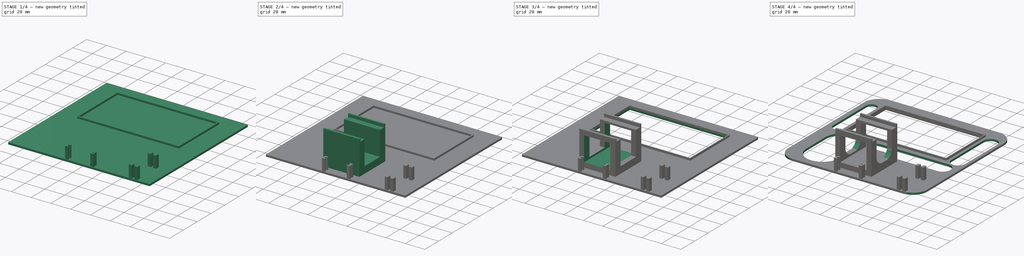
[diagram: build sequence overview — one tinted view per stage of 4, left to right]
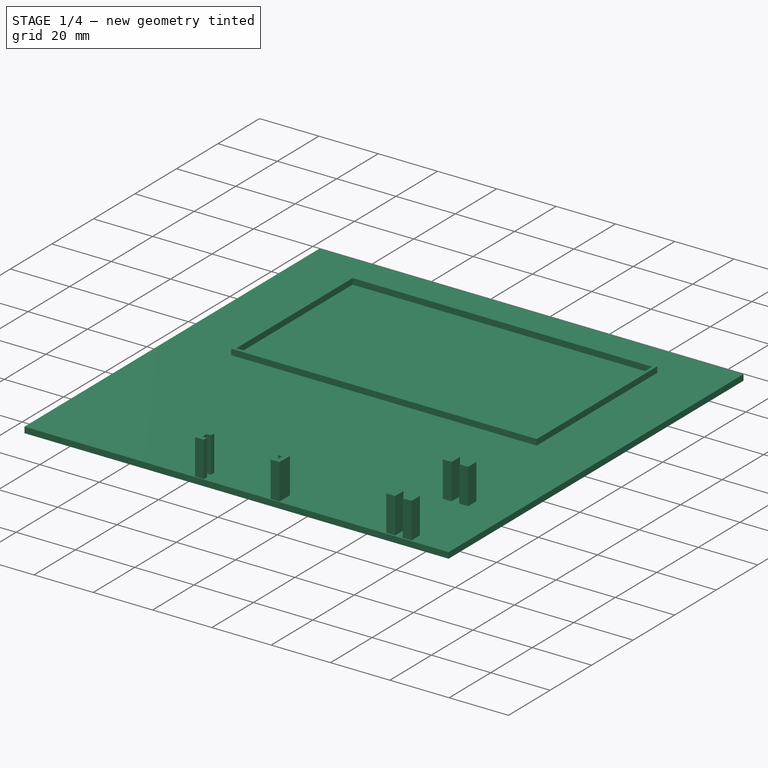
[diagram: stage 1 of 4 — iso view after this stage's code; geometry added in this stage tinted green]
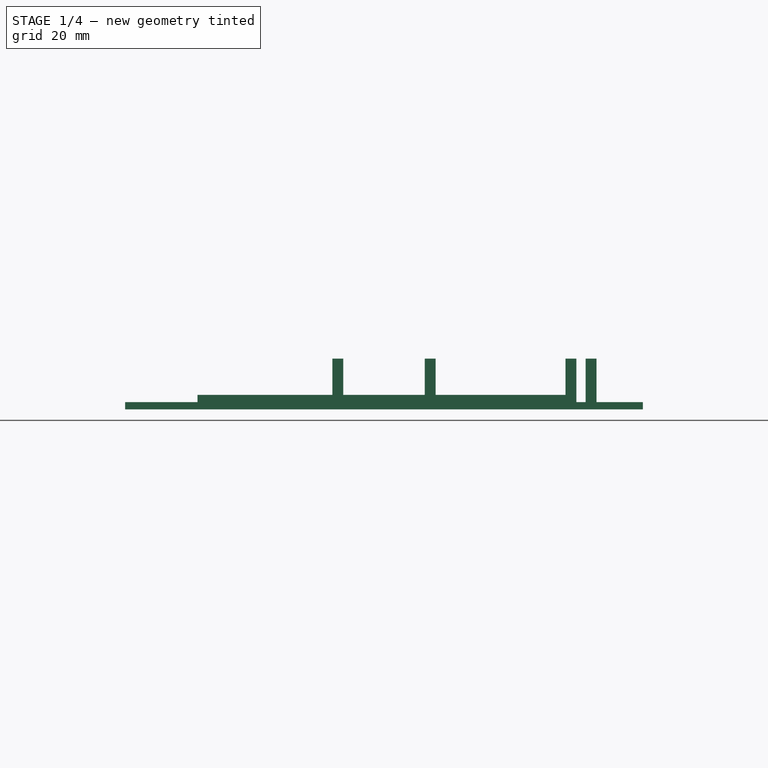
[diagram: stage 1 of 4 — front view after this stage's code; geometry added in this stage tinted green]
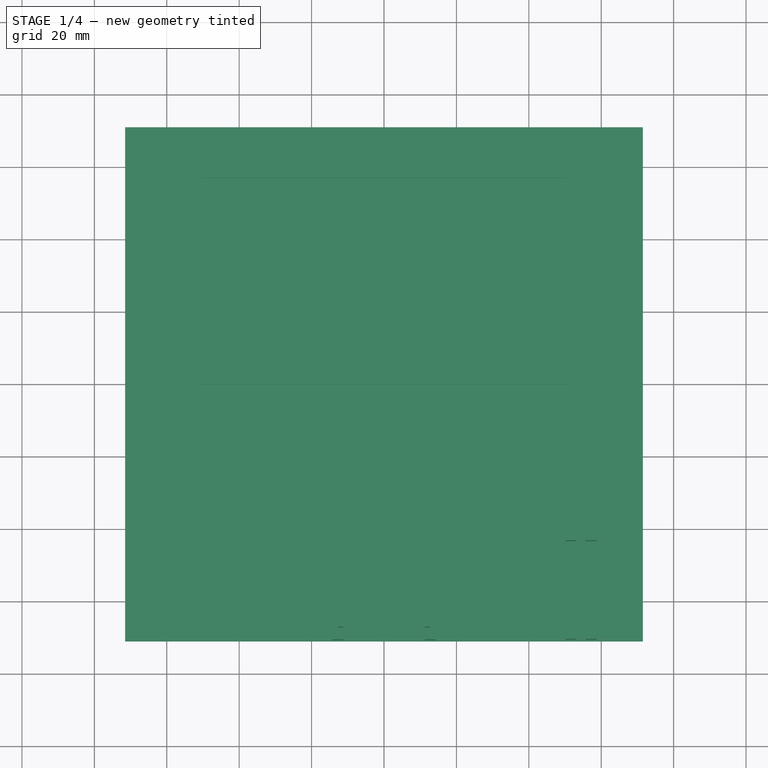
[diagram: stage 1 of 4 — top view after this stage's code; geometry added in this stage tinted green]
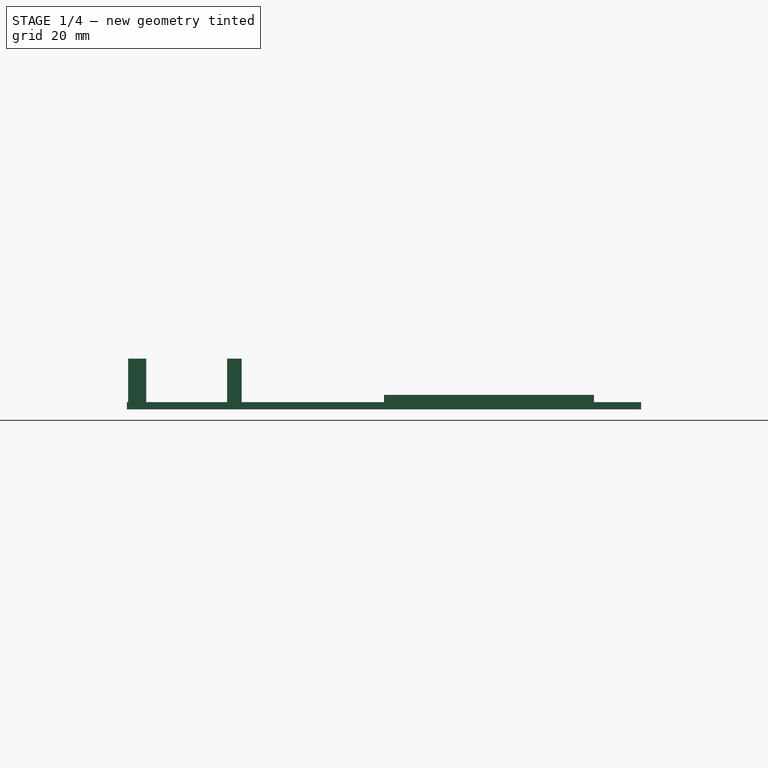
[diagram: stage 1 of 4 — right view after this stage's code; geometry added in this stage tinted green]
FCSTD DOCUMENT  (FreeCAD 0.20R29410 (Git))
Label: SpookyBox2023-2
License: All rights reserved
LicenseURL: http://en.wikipedia.org/wiki/All_rights_reserved
objects: Sketcher::SketchObject×9, PartDesign::Pocket×5, PartDesign::Pad×4, PartDesign::Fillet×2, PartDesign::Body×1
note: 32 computed .brp shape members not serialized (recipe doc carries the construction recipe); baked Part::Feature solids carry a one-line shape summary decoded from their .brp

FEATURE [Sketcher::SketchObject] Sketch
  FullyConstrained = true
  MapMode = 5
  Support = -> [XY_Plane]
  sketch-geometry (4):
    g0: LineSegment StartX=-71.5 StartY=71 StartZ=0 EndX=71.5 EndY=71 EndZ=0
    g1: LineSegment StartX=71.5 StartY=71 StartZ=0 EndX=71.5 EndY=-71 EndZ=0
    g2: LineSegment StartX=71.5 StartY=-71 StartZ=0 EndX=-71.5 EndY=-71 EndZ=0
    g3: LineSegment StartX=-71.5 StartY=-71 StartZ=0 EndX=-71.5 EndY=71 EndZ=0
  constraints (10):
    c: Coincident(g0,g1)
    c: Coincident(g1,g2)
    c: Coincident(g2,g3)
    c: Coincident(g3,g0)
    c: Horizontal(g0)
    c: Vertical(g3)
    c: DistanceX(g2,g1) = 143
    c: Symmetric(g2,g1,g-2)
    c: Symmetric(g0,g1,g-1)
    c: DistanceY(g1,g0) = 142
FEATURE [PartDesign::Pad] Pad  label="Pad - Body Height"
  Direction = (0,0,1)
  Length = 2
  Length2 = 100
  Profile = -> Sketch
  Type = 0
FEATURE [Sketcher::SketchObject] Sketch007  label="Sketch - Camera and Lid Servo Supports"
  FullyConstrained = false
  MapMode = 5
  Placement = pos=(0,0,2) rot=(0,0,1;0rad)
  Support = -> [Pad]
  sketch-geometry (33):
    g0: LineSegment StartX=55.6883 StartY=-39.3182 StartZ=0 EndX=58.6883 EndY=-39.3182 EndZ=0
    g1: LineSegment StartX=58.6883 StartY=-39.3182 StartZ=0 EndX=58.6883 EndY=-43.3182 EndZ=0
    g2: LineSegment StartX=58.6883 StartY=-43.3182 StartZ=0 EndX=55.6883 EndY=-43.3182 EndZ=0
    g3: LineSegment StartX=55.6883 StartY=-43.3182 StartZ=0 EndX=55.6883 EndY=-39.3182 EndZ=0
    g4: LineSegment StartX=50.1383 StartY=-39.3182 StartZ=0 EndX=53.1383 EndY=-39.3182 EndZ=0
    g5: LineSegment StartX=53.1383 StartY=-39.3182 StartZ=0 EndX=53.1383 EndY=-43.3182 EndZ=0
    g6: LineSegment StartX=53.1383 StartY=-43.3182 StartZ=0 EndX=50.1383 EndY=-43.3182 EndZ=0
    g7: LineSegment StartX=50.1383 StartY=-43.3182 StartZ=0 EndX=50.1383 EndY=-39.3182 EndZ=0
    g8: LineSegment StartX=55.6883 StartY=-66.5182 StartZ=0 EndX=58.6883 EndY=-66.5182 EndZ=0
    g9: LineSegment StartX=58.6883 StartY=-66.5182 StartZ=0 EndX=58.6883 EndY=-70.5182 EndZ=0
    g10: LineSegment StartX=58.6883 StartY=-70.5182 StartZ=0 EndX=55.6883 EndY=-70.5182 EndZ=0
    g11: LineSegment StartX=55.6883 StartY=-70.5182 StartZ=0 EndX=55.6883 EndY=-66.5182 EndZ=0
    g12: LineSegment StartX=50.1383 StartY=-66.5182 StartZ=0 EndX=53.1383 EndY=-66.5182 EndZ=0
    g13: LineSegment StartX=53.1383 StartY=-66.5182 StartZ=0 EndX=53.1383 EndY=-70.5182 EndZ=0
    g14: LineSegment StartX=53.1383 StartY=-70.5182 StartZ=0 EndX=50.1383 EndY=-70.5182 EndZ=0
    g15: LineSegment StartX=50.1383 StartY=-70.5182 StartZ=0 EndX=50.1383 EndY=-66.5182 EndZ=0
    g16: LineSegment StartX=11.25 StartY=-65.6743 StartZ=0 EndX=14.25 EndY=-65.6743 EndZ=0
    g17: LineSegment StartX=14.25 StartY=-65.6743 StartZ=0 EndX=14.25 EndY=-70.6743 EndZ=0
    g18: LineSegment StartX=14.25 StartY=-70.6743 StartZ=0 EndX=11.25 EndY=-70.6743 EndZ=0
    g19: LineSegment StartX=11.25 StartY=-70.6743 StartZ=0 EndX=11.25 EndY=-69.1743 EndZ=0
    g20: LineSegment StartX=11.25 StartY=-69.1743 StartZ=0 EndX=12.75 EndY=-69.1743 EndZ=0
    g21: LineSegment StartX=12.75 StartY=-69.1743 StartZ=0 EndX=12.75 EndY=-67.1743 EndZ=0
    g22: LineSegment StartX=12.75 StartY=-67.1743 StartZ=0 EndX=11.25 EndY=-67.1743 EndZ=0
    g23: LineSegment StartX=11.25 StartY=-67.1743 StartZ=0 EndX=11.25 EndY=-65.6743 EndZ=0
    g24: LineSegment StartX=-14.25 StartY=-65.6743 StartZ=0 EndX=-11.25 EndY=-65.6743 EndZ=0
    g25: LineSegment StartX=-11.25 StartY=-65.6743 StartZ=0 EndX=-11.25 EndY=-67.1743 EndZ=0
    g26: LineSegment StartX=-11.25 StartY=-67.1743 StartZ=0 EndX=-12.75 EndY=-67.1743 EndZ=0
    g27: LineSegment StartX=-12.75 StartY=-67.1743 StartZ=0 EndX=-12.75 EndY=-69.1743 EndZ=0
    g28: LineSegment StartX=-12.75 StartY=-69.1743 StartZ=0 EndX=-11.25 EndY=-69.1743 EndZ=0
    g29: LineSegment StartX=-11.25 StartY=-69.1743 StartZ=0 EndX=-11.25 EndY=-70.6743 EndZ=0
    g30: LineSegment StartX=-11.25 StartY=-70.6743 StartZ=0 EndX=-14.25 EndY=-70.6743 EndZ=0
    g31: LineSegment StartX=-14.25 StartY=-70.6743 StartZ=0 EndX=-14.25 EndY=-65.6743 EndZ=0
    g32: GeomPoint X=36.8383 Y=-45.6524 Z=0
  constraints (93):
    c: Coincident(g0,g1)
    c: Coincident(g1,g2)
    c: Coincident(g2,g3)
    c: Coincident(g3,g0)
    c: Horizontal(g0)
    c: Horizontal(g2)
    c: Vertical(g1)
    c: Vertical(g3)
    c: Coincident(g4,g5)
    c: Coincident(g5,g6)
    c: Coincident(g6,g7)
    c: Coincident(g7,g4)
    c: Horizontal(g4)
    c: Horizontal(g6)
    c: Vertical(g5)
    c: Vertical(g7)
    c: Equal(g0,g4)
    c: Equal(g5,g3)
    c: DistanceX(g4,g0) = 2.55
    c: DistanceY(g1,g0) = 4
    c: Horizontal(g4,g0)
    c: DistanceX(g4,g4) = 3
    c: Coincident(g8,g9)
    c: Coincident(g9,g10)
    c: Coincident(g10,g11)
    c: Coincident(g11,g8)
    c: Horizontal(g8)
    c: Horizontal(g10)
    c: Vertical(g9)
    c: Vertical(g11)
    c: Coincident(g12,g13)
    c: Coincident(g13,g14)
    c: Coincident(g14,g15)
    c: Coincident(g15,g12)
    c: Horizontal(g12)
    c: Horizontal(g14)
    c: Vertical(g13)
    c: Vertical(g15)
    c: Vertical(g8,g2)
    c: Vertical(g5,g12)
    c: Equal(g6,g12)
    c: Equal(g2,g8)
    c: Equal(g9,g1)
    c: Equal(g15,g7)
    c: Horizontal(g12,g8)
    c: DistanceY(g12,g5) = 23.2
    c: Horizontal(g16)
    c: Coincident(g16,g17)
    c: Vertical(g17)
    c: Coincident(g17,g18)
    c: Coincident(g18,g19)
    c: Vertical(g19)
    c: Coincident(g19,g20)
    c: Horizontal(g20)
    c: Coincident(g20,g21)
    c: Vertical(g21)
    c: Coincident(g21,g22)
    c: Horizontal(g22)
    c: Coincident(g22,g23)
    c: Coincident(g23,g16)
    c: Vertical(g23)
    c: Horizontal(g18)
    c: DistanceY(g21,g21) = 2
    c: DistanceY(g17,g17) = 5
    c: DistanceX(g20,g20) = 1.5
    c: Equal(g22,g20)
    c: Horizontal(g24)
    c: Coincident(g24,g25)
    c: Vertical(g25)
    c: Coincident(g25,g26)
    c: Horizontal(g26)
    c: Coincident(g26,g27)
    c: Vertical(g27)
    c: Coincident(g27,g28)
    c: Horizontal(g28)
    c: Coincident(g28,g29)
    c: Vertical(g29)
    c: Coincident(g29,g30)
    c: Horizontal(g30)
    c: Coincident(g30,g31)
    c: Coincident(g31,g24)
    c: Vertical(g31)
    c: Equal(g24,g16)
    c: Equal(g26,g22)
    c: Equal(g27,g21)
    c: Equal(g31,g17)
    c: DistanceX(g18,g18) = 3
    c: Equal(g23,g19)
    c: Equal(g25,g23)
    c: Symmetric(g29,g18,g-2)
    c: Equal(g24,g30)
    c: DistanceX(g26,g21) = 25.5
    c: DistanceX(g32,g5) = 16.3
FEATURE [PartDesign::Pad] Pad005  label="Pad - Camera and Lid Servo Supports"
  BaseFeature = -> Pad
  Direction = (0,0,1)
  Length = 12
  Length2 = 100
  Profile = -> Sketch007
  Type = 0
FEATURE [Sketcher::SketchObject] Sketch008
  ExternalGeometry = -> [Pad005]
  FullyConstrained = true
  MapMode = 5
  Placement = pos=(0,0,2) rot=(0,0,1;0rad)
  Support = -> [Pad005]
  sketch-geometry (8):
    g0: LineSegment StartX=-51.5 StartY=58 StartZ=0 EndX=51.5 EndY=58 EndZ=0
    g1: LineSegment StartX=51.5 StartY=58 StartZ=0 EndX=51.5 EndY=0 EndZ=0
    g2: LineSegment StartX=51.5 StartY=0 StartZ=0 EndX=-51.5 EndY=0 EndZ=0
    g3: LineSegment StartX=-51.5 StartY=0 StartZ=0 EndX=-51.5 EndY=58 EndZ=0
    g4: LineSegment StartX=-50.5 StartY=57 StartZ=0 EndX=50.5 EndY=57 EndZ=0
    g5: LineSegment StartX=50.5 StartY=57 StartZ=0 EndX=50.5 EndY=1 EndZ=0
    g6: LineSegment StartX=50.5 StartY=1 StartZ=0 EndX=-50.5 EndY=1 EndZ=0
    g7: LineSegment StartX=-50.5 StartY=1 StartZ=0 EndX=-50.5 EndY=57 EndZ=0
  constraints (23):
    c: Coincident(g0,g1)
    c: Coincident(g1,g2)
    c: Coincident(g2,g3)
    c: Coincident(g3,g0)
    c: Horizontal(g0)
    c: Horizontal(g2)
    c: Vertical(g1)
    c: Vertical(g3)
    c: Symmetric(g2,g1,g-1)
    c: DistanceY(g1,g1) = 58
    c: DistanceX(g0,g0) = 103
    c: Coincident(g4,g5)
    c: Coincident(g5,g6)
    c: Coincident(g6,g7)
    c: Coincident(g7,g4)
    c: Horizontal(g4)
    c: Horizontal(g6)
    c: Vertical(g5)
    c: Vertical(g7)
    c: DistanceX(g4,g0) = 1
    c: DistanceY(g4,g0) = 1
    c: DistanceY(g2,g6) = 1
    c: DistanceX(g2,g6) = 1
FEATURE [PartDesign::Pad] Pad006
  BaseFeature = -> Pad005
  Direction = (0,0,1)
  Length = 2
  Length2 = 10
  Profile = -> Sketch008
  ReferenceAxis = -> Sketch008 [N_Axis]
  Type = 0
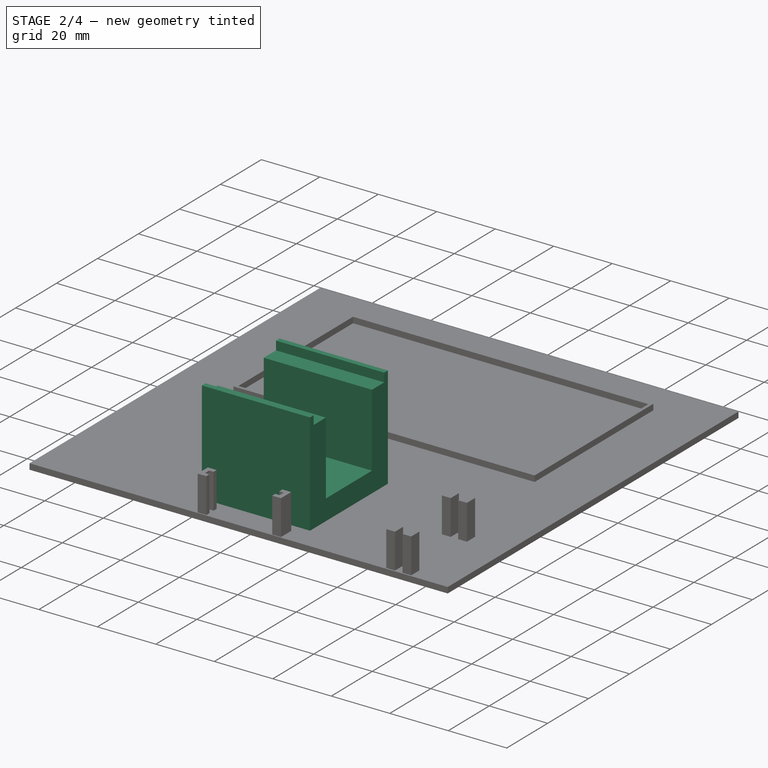
[diagram: stage 2 of 4 — iso view after this stage's code; geometry added in this stage tinted green]
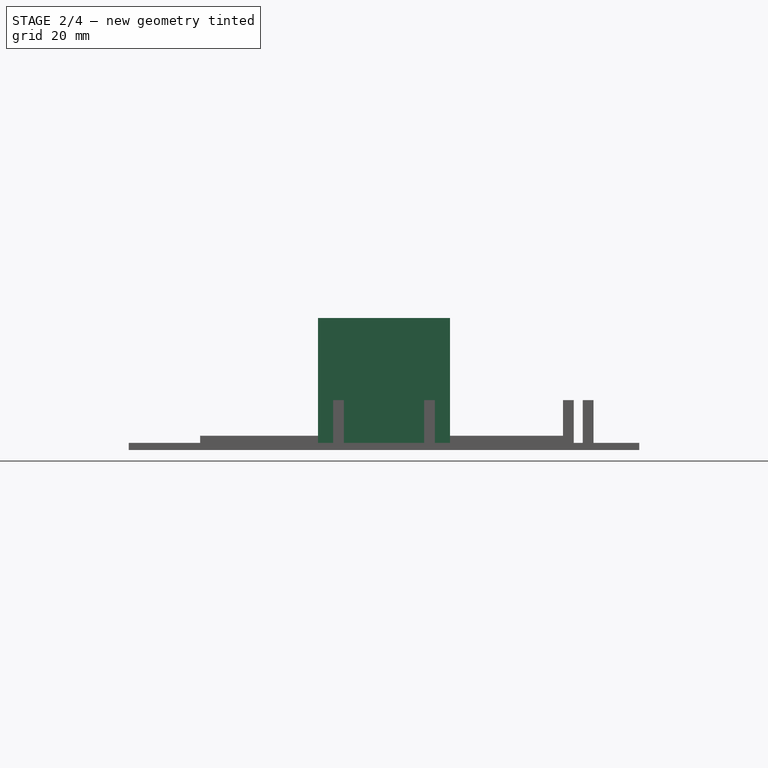
[diagram: stage 2 of 4 — front view after this stage's code; geometry added in this stage tinted green]
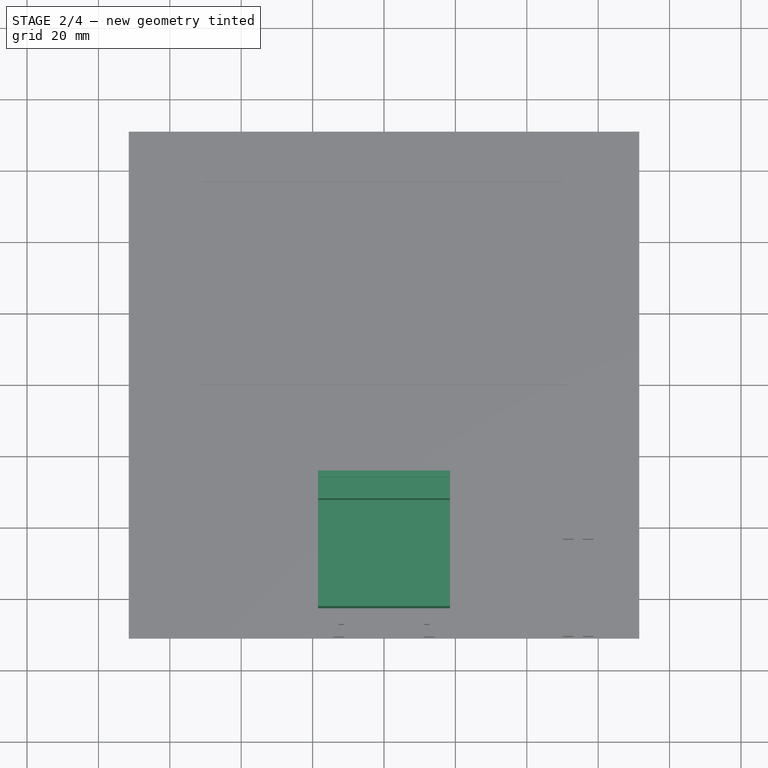
[diagram: stage 2 of 4 — top view after this stage's code; geometry added in this stage tinted green]
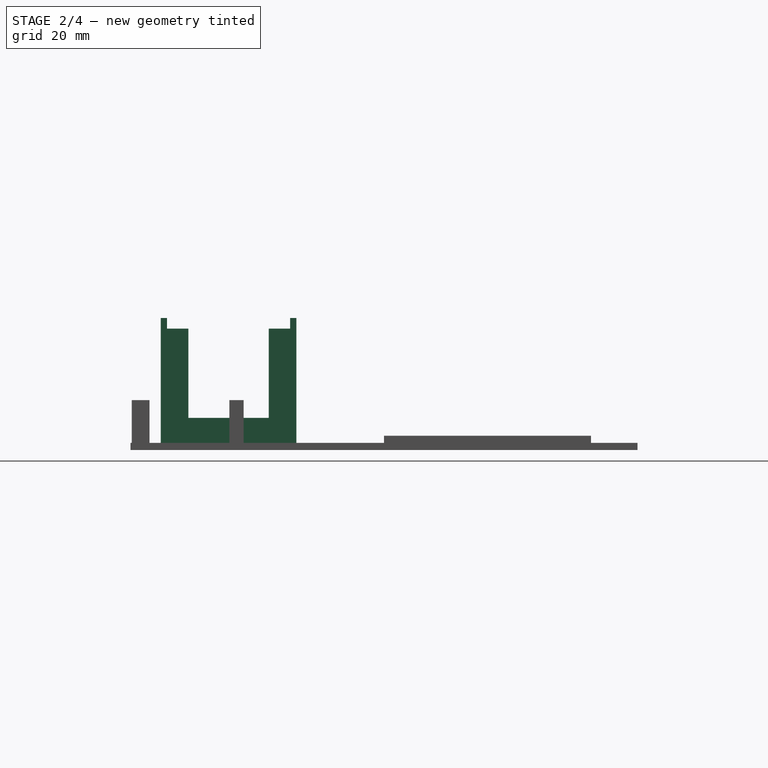
[diagram: stage 2 of 4 — right view after this stage's code; geometry added in this stage tinted green]
FEATURE [Sketcher::SketchObject] Sketch009
  FullyConstrained = false
  MapMode = 5
  Placement = pos=(0,0,2) rot=(0,0,1;0rad)
  Support = -> [Pad006]
  sketch-geometry (4):
    g0: LineSegment StartX=-18.5 StartY=-62.5518 StartZ=0 EndX=18.5 EndY=-62.5518 EndZ=0
    g1: LineSegment StartX=18.5 StartY=-62.5518 StartZ=0 EndX=18.5 EndY=-24.5518 EndZ=0
    g2: LineSegment StartX=18.5 StartY=-24.5518 StartZ=0 EndX=-18.5 EndY=-24.5518 EndZ=0
    g3: LineSegment StartX=-18.5 StartY=-24.5518 StartZ=0 EndX=-18.5 EndY=-62.5518 EndZ=0
  constraints (10):
    c: Coincident(g0,g1)
    c: Coincident(g1,g2)
    c: Coincident(g2,g3)
    c: Coincident(g3,g0)
    c: Horizontal(g0)
    c: Vertical(g1)
    c: Vertical(g3)
    c: DistanceY(g1,g1) = 38
    c: DistanceX(g2,g2) = 37
    c: Symmetric(g1,g2,g-2)
FEATURE [PartDesign::Pad] Pad007
  BaseFeature = -> Pad006
  Direction = (0,0,1)
  Length = 35
  Length2 = 10
  Profile = -> Sketch009
  ReferenceAxis = -> Sketch009 [N_Axis]
  Type = 0
FEATURE [Sketcher::SketchObject] Sketch010
  ExternalGeometry = -> [Pad007]
  FullyConstrained = true
  MapMode = 5
  Placement = pos=(0,0,37) rot=(0,0,1;0rad)
  Support = -> [Pad007]
  sketch-geometry (4):
    g0: LineSegment StartX=-18.5 StartY=-26.3018 StartZ=0 EndX=18.5 EndY=-26.3018 EndZ=0
    g1: LineSegment StartX=18.5 StartY=-26.3018 StartZ=0 EndX=18.5 EndY=-60.8018 EndZ=0
    g2: LineSegment StartX=18.5 StartY=-60.8018 StartZ=0 EndX=-18.5 EndY=-60.8018 EndZ=0
    g3: LineSegment StartX=-18.5 StartY=-60.8018 StartZ=0 EndX=-18.5 EndY=-26.3018 EndZ=0
  constraints (12):
    c: Coincident(g0,g1)
    c: Coincident(g1,g2)
    c: Coincident(g2,g3)
    c: Coincident(g3,g0)
    c: Horizontal(g0)
    c: Horizontal(g2)
    c: Vertical(g1)
    c: Vertical(g3)
    c: PointOnObject(g0,g-6)
    c: PointOnObject(g1,g-4)
    c: DistanceY(g0,g-4) = 1.75
    c: DistanceY(g-5,g1) = 1.75
FEATURE [PartDesign::Pocket] Pocket
  BaseFeature = -> Pad007
  Direction = (0,0,-1)
  Length = 3
  Length2 = 5
  Profile = -> Sketch010
  ReferenceAxis = -> Sketch010 [N_Axis]
  Type = 0
FEATURE [Sketcher::SketchObject] Sketch011
  ExternalGeometry = -> [Pocket]
  FullyConstrained = true
  MapMode = 5
  Placement = pos=(0,0,34) rot=(0,0,1;0rad)
  Support = -> [Pocket]
  sketch-geometry (4):
    g0: LineSegment StartX=-18.5 StartY=-32.3018 StartZ=0 EndX=18.5 EndY=-32.3018 EndZ=0
    g1: LineSegment StartX=18.5 StartY=-32.3018 StartZ=0 EndX=18.5 EndY=-54.8018 EndZ=0
    g2: LineSegment StartX=18.5 StartY=-54.8018 StartZ=0 EndX=-18.5 EndY=-54.8018 EndZ=0
    g3: LineSegment StartX=-18.5 StartY=-54.8018 StartZ=0 EndX=-18.5 EndY=-32.3018 EndZ=0
  constraints (12):
    c: Coincident(g0,g1)
    c: Coincident(g1,g2)
    c: Coincident(g2,g3)
    c: Coincident(g3,g0)
    c: Horizontal(g0)
    c: Horizontal(g2)
    c: Vertical(g1)
    c: Vertical(g3)
    c: PointOnObject(g0,g-6)
    c: PointOnObject(g1,g-5)
    c: DistanceY(g0,g-5) = 6
    c: DistanceY(g-5,g1) = 6
FEATURE [PartDesign::Pocket] Pocket001
  BaseFeature = -> Pocket
  Direction = (0,0,-1)
  Length = 25
  Length2 = 5
  Profile = -> Sketch011
  ReferenceAxis = -> Sketch011 [N_Axis]
  Type = 0
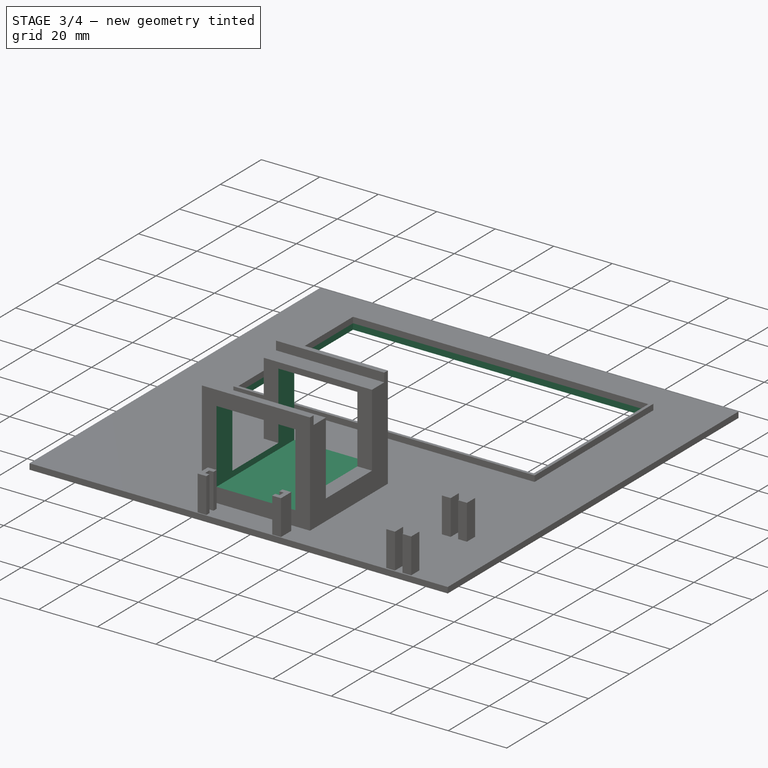
[diagram: stage 3 of 4 — iso view after this stage's code; geometry added in this stage tinted green]
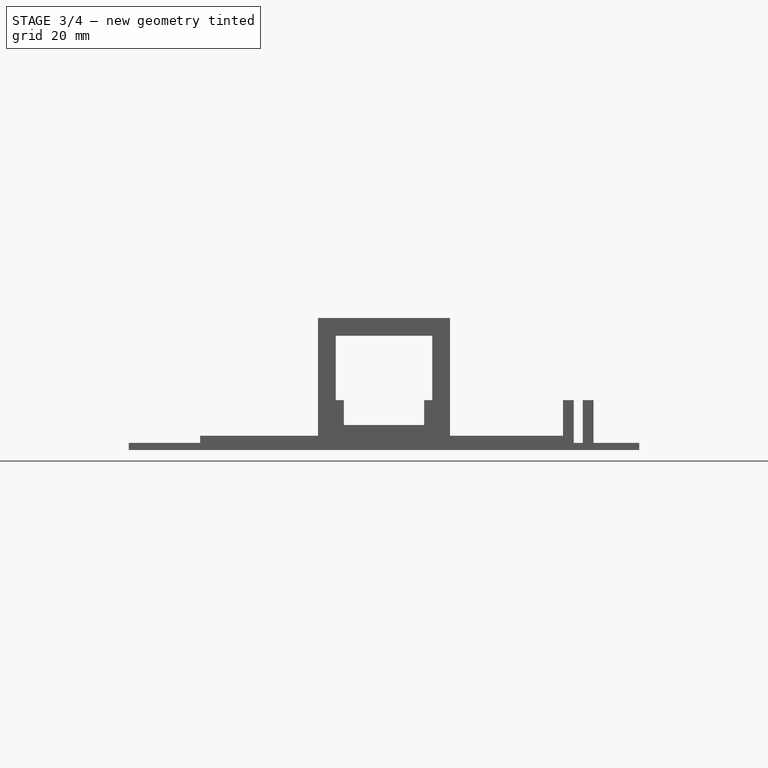
[diagram: stage 3 of 4 — front view after this stage's code; geometry added in this stage tinted green]
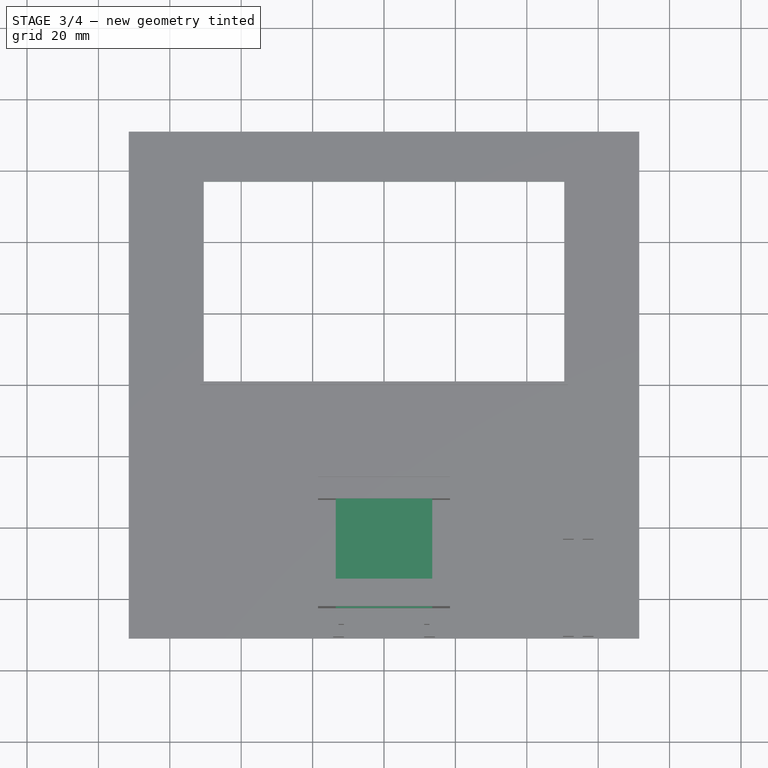
[diagram: stage 3 of 4 — top view after this stage's code; geometry added in this stage tinted green]
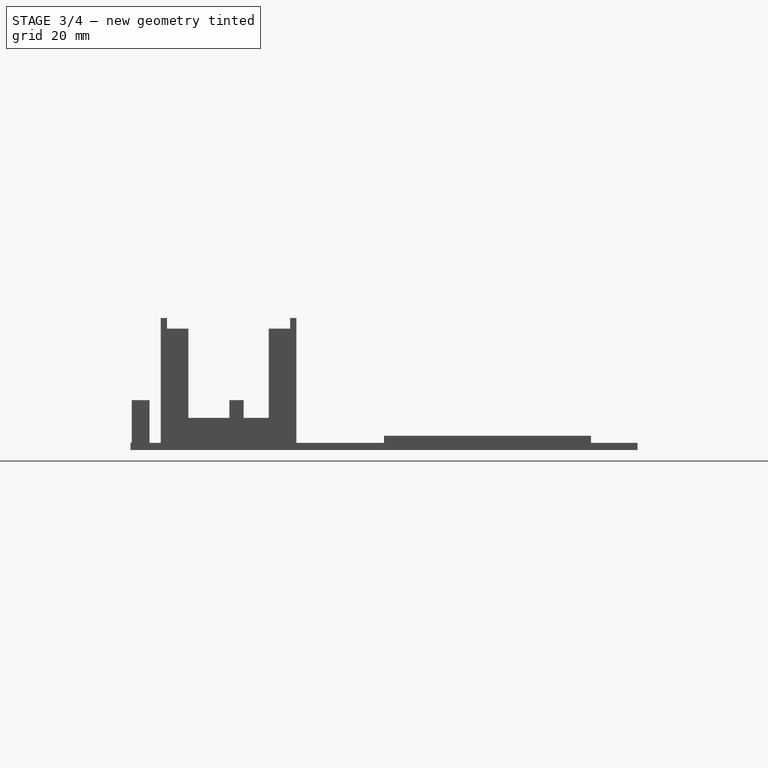
[diagram: stage 3 of 4 — right view after this stage's code; geometry added in this stage tinted green]
FEATURE [Sketcher::SketchObject] Sketch013
  ExternalGeometry = -> [Pocket001]
  FullyConstrained = true
  MapMode = 5
  Placement = pos=(0,-62.5518,0) rot=(1,0,0;1.5708rad)
  Support = -> [Pocket001]
  sketch-geometry (4):
    g0: LineSegment StartX=-13.5 StartY=32 StartZ=0 EndX=13.5 EndY=32 EndZ=0
    g1: LineSegment StartX=13.5 StartY=32 StartZ=0 EndX=13.5 EndY=7 EndZ=0
    g2: LineSegment StartX=13.5 StartY=7 StartZ=0 EndX=-13.5 EndY=7 EndZ=0
    g3: LineSegment StartX=-13.5 StartY=7 StartZ=0 EndX=-13.5 EndY=32 EndZ=0
  constraints (12):
    c: Coincident(g0,g1)
    c: Coincident(g1,g2)
    c: Coincident(g2,g3)
    c: Coincident(g3,g0)
    c: Horizontal(g0)
    c: Horizontal(g2)
    c: Vertical(g1)
    c: Vertical(g3)
    c: DistanceX(g0,g-4) = 5
    c: DistanceX(g-5,g0) = 5
    c: DistanceY(g0,g-4) = 5
    c: DistanceY(g-4,g1) = 5
FEATURE [PartDesign::Pocket] Pocket002
  BaseFeature = -> Pocket001
  Direction = (0,1,-2e-16)
  Length = 45
  Length2 = 5
  Profile = -> Sketch013
  ReferenceAxis = -> Sketch013 [N_Axis]
  Type = 0
FEATURE [Sketcher::SketchObject] Sketch014
  ExternalGeometry = -> [Pocket002]
  FullyConstrained = true
  MapMode = 5
  Placement = pos=(0,0,2) rot=(0,0,1;0rad)
  Support = -> [Pocket002]
  sketch-geometry (4):
    g0: LineSegment StartX=-50.5 StartY=1 StartZ=0 EndX=50.5 EndY=1 EndZ=0
    g1: LineSegment StartX=50.5 StartY=1 StartZ=0 EndX=50.5 EndY=57 EndZ=0
    g2: LineSegment StartX=50.5 StartY=57 StartZ=0 EndX=-50.5 EndY=57 EndZ=0
    g3: LineSegment StartX=-50.5 StartY=57 StartZ=0 EndX=-50.5 EndY=1 EndZ=0
  constraints (10):
    c: Coincident(g0,g1)
    c: Coincident(g1,g2)
    c: Coincident(g2,g3)
    c: Coincident(g3,g0)
    c: Horizontal(g0)
    c: Horizontal(g2)
    c: Vertical(g1)
    c: Vertical(g3)
    c: Coincident(g0,g-6)
    c: Coincident(g1,g-7)
FEATURE [PartDesign::Pocket] Pocket003
  BaseFeature = -> Pocket002
  Direction = (0,0,-1)
  Length = 5
  Length2 = 5
  Profile = -> Sketch014
  ReferenceAxis = -> Sketch014 [N_Axis]
  Type = 1
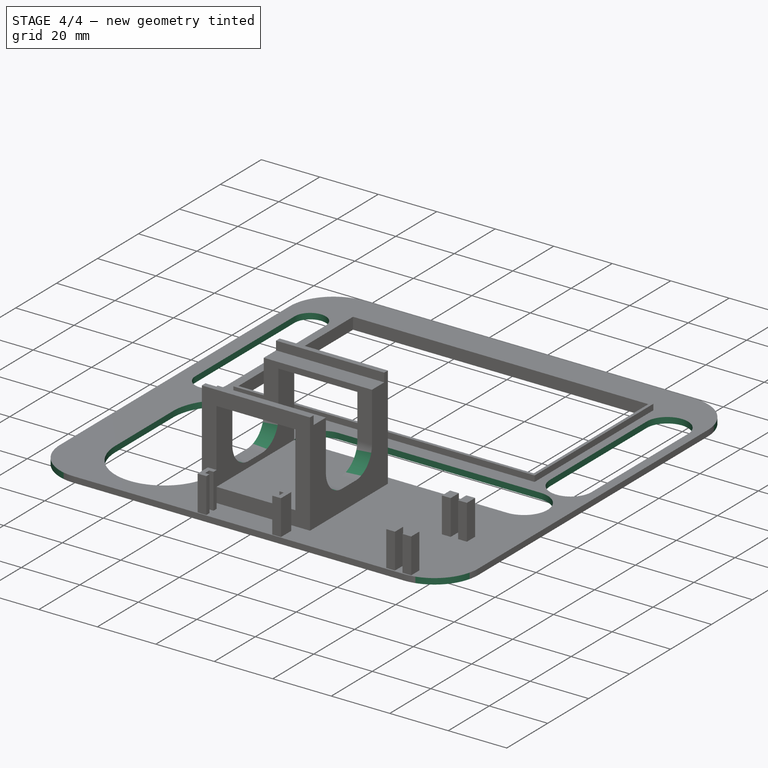
[diagram: stage 4 of 4 — iso view after this stage's code; geometry added in this stage tinted green]
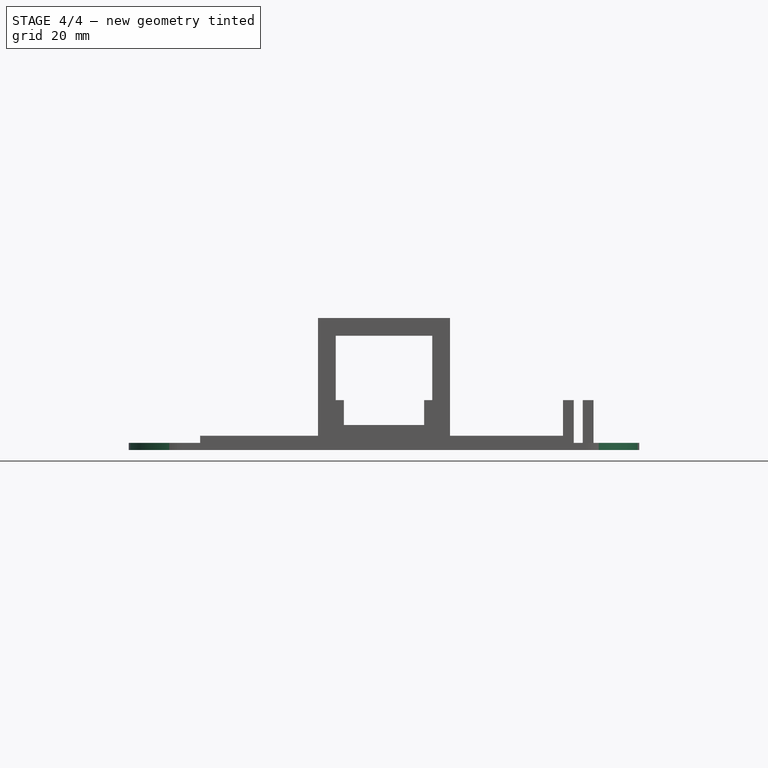
[diagram: stage 4 of 4 — front view after this stage's code; geometry added in this stage tinted green]
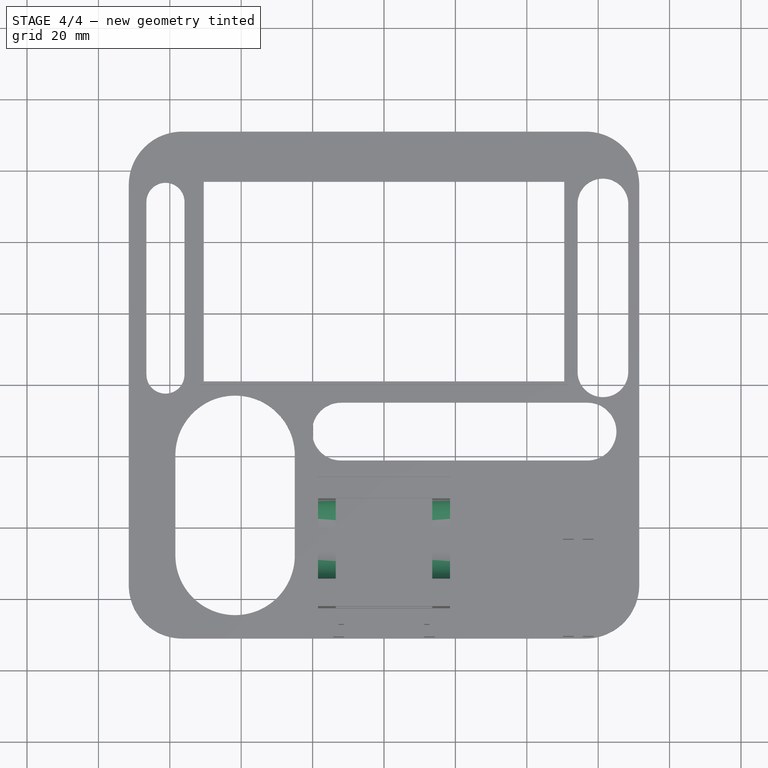
[diagram: stage 4 of 4 — top view after this stage's code; geometry added in this stage tinted green]
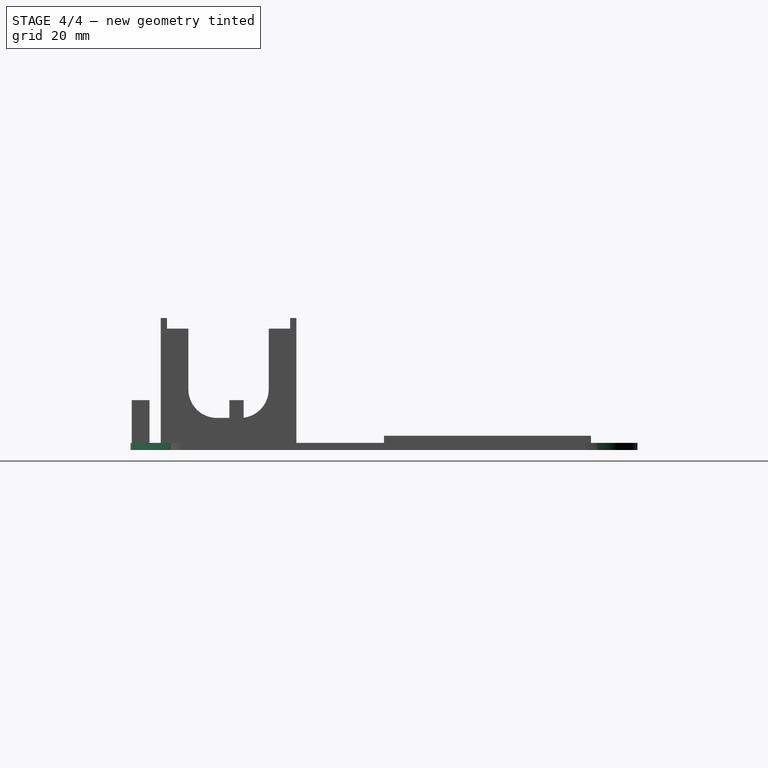
[diagram: stage 4 of 4 — right view after this stage's code; geometry added in this stage tinted green]
FEATURE [Sketcher::SketchObject] Sketch015
  FullyConstrained = false
  MapMode = 5
  Placement = pos=(0,0,2) rot=(0,0,1;0rad)
  Support = -> [Pocket003]
  sketch-geometry (16):
    g0: ArcOfCircle CenterX=-41.714 CenterY=-19.6557 CenterZ=0 NormalX=0 NormalY=0 NormalZ=1 AngleXU=0 Radius=16.7272 StartAngle=0 EndAngle=3.14159
    g1: ArcOfCircle CenterX=-41.714 CenterY=-47.7349 CenterZ=0 NormalX=0 NormalY=0 NormalZ=1 AngleXU=0 Radius=16.7272 StartAngle=3.14159 EndAngle=6.28319
    g2: LineSegment StartX=-58.4412 StartY=-19.6557 StartZ=0 EndX=-58.4412 EndY=-47.7349 EndZ=0
    g3: LineSegment StartX=-24.9868 StartY=-47.7349 StartZ=0 EndX=-24.9868 EndY=-19.6557 EndZ=0
    g4: ArcOfCircle CenterX=-12.0383 CenterY=-13.0278 CenterZ=0 NormalX=0 NormalY=0 NormalZ=1 AngleXU=0 Radius=8.11719 StartAngle=1.5708 EndAngle=4.71239
    g5: ArcOfCircle CenterX=56.9844 CenterY=-13.0278 CenterZ=0 NormalX=0 NormalY=0 NormalZ=1 AngleXU=0 Radius=8.11719 StartAngle=4.71239 EndAngle=7.85398
    g6: LineSegment StartX=-12.0383 StartY=-21.145 StartZ=0 EndX=56.9844 EndY=-21.145 EndZ=0
    g7: LineSegment StartX=56.9844 StartY=-4.91059 StartZ=0 EndX=-12.0383 EndY=-4.91059 EndZ=0
    g8: ArcOfCircle CenterX=-61.2213 CenterY=51.3657 CenterZ=0 NormalX=0 NormalY=0 NormalZ=1 AngleXU=0 Radius=5.32837 StartAngle=0 EndAngle=3.14159
    g9: ArcOfCircle CenterX=-61.2213 CenterY=2.9208 CenterZ=0 NormalX=0 NormalY=0 NormalZ=1 AngleXU=0 Radius=5.32837 StartAngle=3.14159 EndAngle=6.28319
    g10: LineSegment StartX=-66.5497 StartY=51.3657 StartZ=0 EndX=-66.5497 EndY=2.9208 EndZ=0
    g11: LineSegment StartX=-55.893 StartY=2.9208 StartZ=0 EndX=-55.893 EndY=51.3657 EndZ=0
    g12: ArcOfCircle CenterX=61.3218 CenterY=50.7738 CenterZ=0 NormalX=0 NormalY=0 NormalZ=1 AngleXU=0 Radius=7.09833 StartAngle=0 EndAngle=3.14159
    g13: ArcOfCircle CenterX=61.3218 CenterY=3.71012 CenterZ=0 NormalX=0 NormalY=0 NormalZ=1 AngleXU=0 Radius=7.09833 StartAngle=3.14159 EndAngle=6.28319
    g14: LineSegment StartX=54.2235 StartY=50.7738 StartZ=0 EndX=54.2235 EndY=3.71012 EndZ=0
    g15: LineSegment StartX=68.4202 StartY=3.71012 StartZ=0 EndX=68.4202 EndY=50.7738 EndZ=0
  constraints (24):
    c: Tangent(g0,g2) = -1.5708
    c: Tangent(g2,g1) = -1.5708
    c: Tangent(g1,g3) = -1.5708
    c: Tangent(g3,g0) = -1.5708
    c: Equal(g0,g1)
    c: Vertical(g2)
    c: Tangent(g4,g6) = -1.5708
    c: Tangent(g6,g5) = -1.5708
    c: Tangent(g5,g7) = -1.5708
    c: Tangent(g7,g4) = -1.5708
    c: Equal(g4,g5)
    c: Horizontal(g6)
    c: Tangent(g8,g10) = -1.5708
    c: Tangent(g10,g9) = -1.5708
    c: Tangent(g9,g11) = -1.5708
    c: Tangent(g11,g8) = -1.5708
    c: Equal(g8,g9)
    c: Vertical(g10)
    c: Tangent(g12,g14) = -1.5708
    c: Tangent(g14,g13) = -1.5708
    c: Tangent(g13,g15) = -1.5708
    c: Tangent(g15,g12) = -1.5708
    c: Equal(g12,g13)
    c: Vertical(g14)
FEATURE [PartDesign::Pocket] Pocket004
  BaseFeature = -> Pocket003
  Direction = (0,0,-1)
  Length = 5
  Length2 = 5
  Profile = -> Sketch015
  ReferenceAxis = -> Sketch015 [N_Axis]
  Type = 1
FEATURE [PartDesign::Fillet] Fillet
  Base = -> Pocket004 [Edge245,Edge243,Edge241,Edge242]
  BaseFeature = -> Pocket004
  Radius = 8
  SupportTransform = false
  UseAllEdges = false
FEATURE [PartDesign::Fillet] Fillet001
  Base = -> Fillet [Edge132,Edge134,Edge130,Edge129]
  BaseFeature = -> Fillet
  Radius = 15
  SupportTransform = false
  UseAllEdges = false
FEATURE [PartDesign::Body] Body  label="Base"
  Group = -> [Sketch,Pad,Sketch007,Pad005,Sketch008,Pad006,Sketch009,Pad007,Sketch010,Pocket,Sketch011,Pocket001,Sketch013,Pocket002,Sketch014,Pocket003,Sketch015,Pocket004,Fillet,Fillet001]
  Origin = -> Origin
  Tip = -> Fillet001
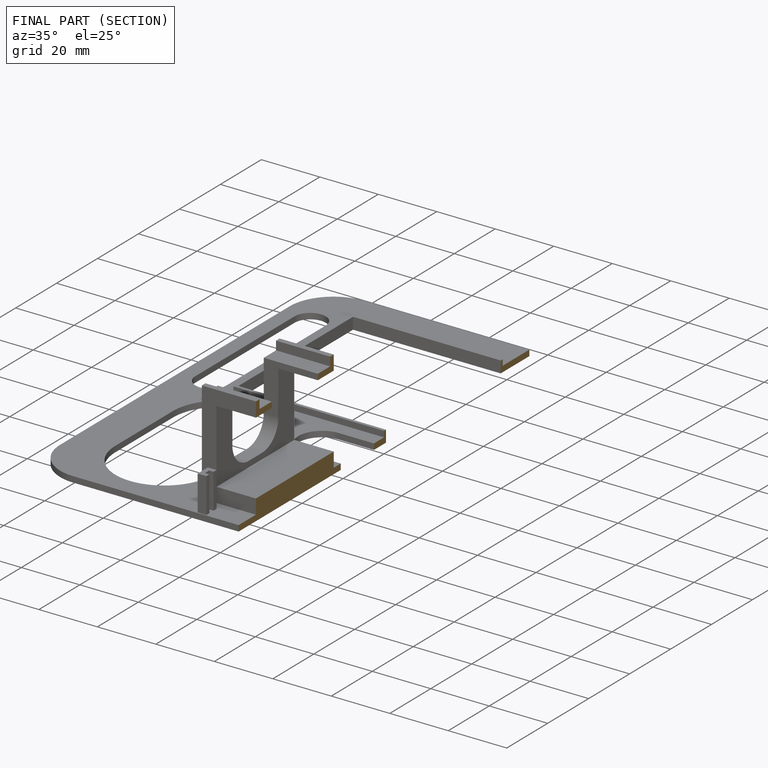
[diagram: finished part — half-section view (interior)]
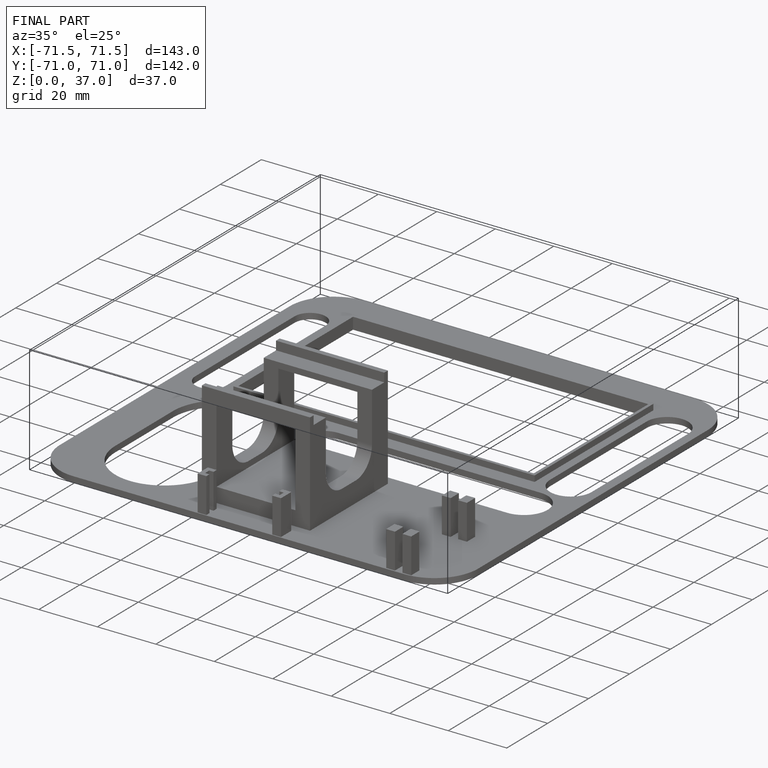
[diagram: finished part — iso view with bounding-box wireframe]
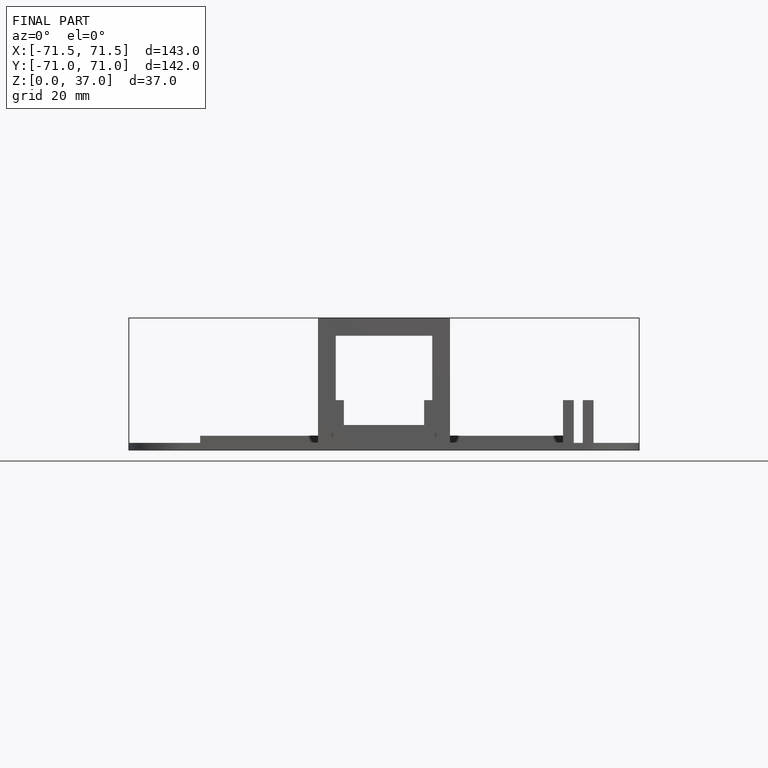
[diagram: finished part — front view with bounding-box wireframe]
